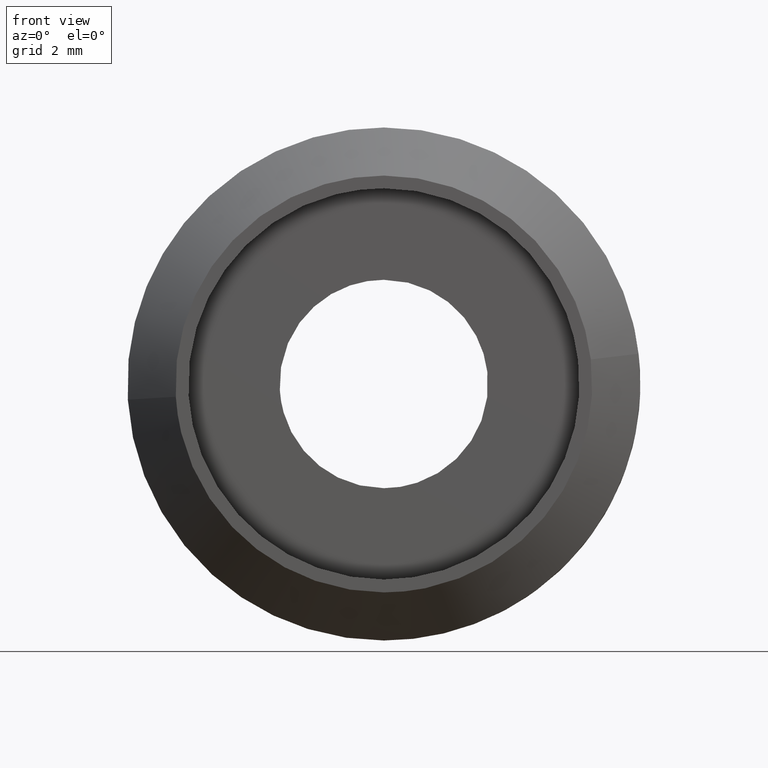
[diagram: clean part render]
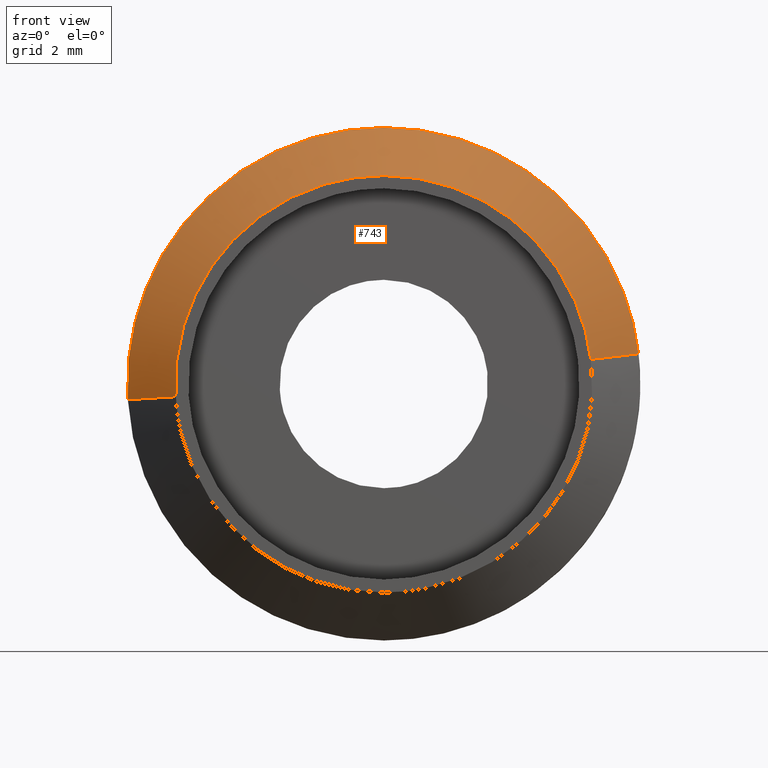
[diagram: same view with one face highlighted and labeled with its STEP entity id]
A machine part, front view. The second image highlights one B-rep face of the part: STEP entity #743.
In plain terms, the highlighted face is a freeform B-spline surface patch.
Its self-contained STEP definition (entity closure, byte-faithful):
#79=CARTESIAN_POINT('',(-7.985078387375068,4.337364E-013,-0.488388316280749));
#80=VERTEX_POINT('',#79);
#161=CARTESIAN_POINT('',(7.944076210909435,1.578459E-012,0.944273877266574));
#162=VERTEX_POINT('',#161);
#212=CARTESIAN_POINT('',(0.0,0.0,8.0));
#213=VERTEX_POINT('',#212);
#214=CARTESIAN_POINT('',(-7.985078387375068,4.337364E-013,-0.488388316280749));
#215=CARTESIAN_POINT('',(-7.999999999999999,0.0,-0.244422106392477));
#216=CARTESIAN_POINT('',(-8.0,0.0,0.0));
#217=CARTESIAN_POINT('',(-8.0,0.0,8.0));
#218=CARTESIAN_POINT('',(0.0,0.0,8.0));
#226=(BOUNDED_CURVE()B_SPLINE_CURVE(2,(#214,#215,#216,#217,#218),.UNSPECIFIED.,.F.,.U.)B_SPLINE_CURVE_WITH_KNOTS((3,2,3),(0.739332962241806,0.750000000000000,1.0),.UNSPECIFIED.)CURVE()GEOMETRIC_REPRESENTATION_ITEM()RATIONAL_B_SPLINE_CURVE((0.976072041672854,0.987502787903192,1.0,0.707106781186548,1.0))REPRESENTATION_ITEM(''));
#227=EDGE_CURVE('',#80,#213,#226,.T.);
#229=CARTESIAN_POINT('',(0.0,0.0,8.0));
#230=CARTESIAN_POINT('',(7.105396207588751,0.0,8.0));
#231=CARTESIAN_POINT('',(7.944076210909435,1.578459E-012,0.944273877266574));
#239=(BOUNDED_CURVE()B_SPLINE_CURVE(2,(#229,#230,#231),.UNSPECIFIED.,.F.,.U.)B_SPLINE_CURVE_WITH_KNOTS((3,3),(0.0,0.229562473515120),.UNSPECIFIED.)CURVE()GEOMETRIC_REPRESENTATION_ITEM()RATIONAL_B_SPLINE_CURVE((1.0,0.731050832853514,0.956026754186859))REPRESENTATION_ITEM(''));
#240=EDGE_CURVE('',#213,#162,#239,.T.);
#639=CARTESIAN_POINT('',(6.454561921363924,-1.499999999998524,0.767222525280608));
#640=VERTEX_POINT('',#639);
#658=CARTESIAN_POINT('',(-6.487874580296803,-1.500001690434756,-0.396814131159551));
#659=VERTEX_POINT('',#658);
#673=CARTESIAN_POINT('',(-6.487874580296803,-1.500001690434756,-0.396814131159551));
#674=CARTESIAN_POINT('',(-7.985078387375068,4.337364E-013,-0.488388316280749));
#675=QUASI_UNIFORM_CURVE('',1,(#673,#674),.UNSPECIFIED.,.F.,.U.);
#676=EDGE_CURVE('',#659,#80,#675,.T.);
#681=CARTESIAN_POINT('',(6.454561921363924,-1.499999999998524,0.767222525280608));
#682=CARTESIAN_POINT('',(7.944076210909435,1.578459E-012,0.944273877266574));
#683=QUASI_UNIFORM_CURVE('',1,(#681,#682),.UNSPECIFIED.,.F.,.U.);
#684=EDGE_CURVE('',#640,#162,#683,.T.);
#689=CARTESIAN_POINT('',(-6.450446134801303,-1.537500000000000,-0.394526186744013));
#690=CARTESIAN_POINT('',(-6.844972321545316,-1.537500000000000,6.055919948057291));
#691=CARTESIAN_POINT('',(-0.394526186744013,-1.537500000000000,6.450446134801303));
#692=CARTESIAN_POINT('',(5.696974809550266,-1.537500000000000,6.823018296383949));
#693=CARTESIAN_POINT('',(6.417324064125184,-1.537500000000001,0.762796241469300));
#694=CARTESIAN_POINT('',(-8.023444193689276,0.038437500000000,-0.490734869517227));
#695=CARTESIAN_POINT('',(-8.514179063206504,0.038437500000000,7.532709324172050));
#696=CARTESIAN_POINT('',(-0.490734869517227,0.038437500000000,8.023444193689276));
#697=CARTESIAN_POINT('',(7.086232254645152,0.038437500000000,8.486871355797128));
#698=CARTESIAN_POINT('',(7.982245014578937,0.038437500000000,0.948810818148687));
#706=(BOUNDED_SURFACE()B_SPLINE_SURFACE(2,1,((#689,#694),(#690,#695),(#691,#696),(#692,#697),(#693,#698)),.UNSPECIFIED.,.F.,.F.,.U.)B_SPLINE_SURFACE_WITH_KNOTS((3,2,3),(2,2),(0.0,13.318519331153910,26.104297889061652),(0.0,2.228712185952358),.UNSPECIFIED.)GEOMETRIC_REPRESENTATION_ITEM()RATIONAL_B_SPLINE_SURFACE(((1.0,1.0),(0.707106781186548,0.707106781186548),(1.0,1.0),(0.718822509939086,0.718822509939086),(0.977505800795127,0.977505800795127)))REPRESENTATION_ITEM('')SURFACE());
#707=CARTESIAN_POINT('',(0.0,-1.500000000000000,6.500000000000000));
#708=VERTEX_POINT('',#707);
#709=CARTESIAN_POINT('',(0.0,-1.500000000000000,6.500000000000000));
#710=CARTESIAN_POINT('',(5.773134418663169,-1.500000000000000,6.500000000000001));
#711=CARTESIAN_POINT('',(6.454561921363924,-1.499999999998525,0.767222525280608));
#719=(BOUNDED_CURVE()B_SPLINE_CURVE(2,(#709,#710,#711),.UNSPECIFIED.,.F.,.U.)B_SPLINE_CURVE_WITH_KNOTS((3,3),(0.0,0.229562473515042),.UNSPECIFIED.)CURVE()GEOMETRIC_REPRESENTATION_ITEM()RATIONAL_B_SPLINE_CURVE((1.0,0.731050832853606,0.956026754186705))REPRESENTATION_ITEM(''));
#720=EDGE_CURVE('',#708,#640,#719,.T.);
#721=ORIENTED_EDGE('',*,*,#720,.T.);
#722=ORIENTED_EDGE('',*,*,#684,.T.);
#723=ORIENTED_EDGE('',*,*,#240,.F.);
#724=ORIENTED_EDGE('',*,*,#227,.F.);
#725=ORIENTED_EDGE('',*,*,#676,.F.);
#726=CARTESIAN_POINT('',(-6.487874580296803,-1.500001690434756,-0.396814131159551));
#727=CARTESIAN_POINT('',(-6.499998336965248,-1.500001666142294,-0.198592221632066));
#728=CARTESIAN_POINT('',(-6.499998362740728,-1.500001640318650,0.000000100138742));
#729=CARTESIAN_POINT('',(-6.499999206381681,-1.500000795101272,6.500000048539619));
#730=CARTESIAN_POINT('',(0.0,-1.500000000000000,6.500000000000000));
#738=(BOUNDED_CURVE()B_SPLINE_CURVE(2,(#726,#727,#728,#729,#730),.UNSPECIFIED.,.F.,.U.)B_SPLINE_CURVE_WITH_KNOTS((3,2,3),(0.739332996087604,0.750000000000000,1.0),.UNSPECIFIED.)CURVE()GEOMETRIC_REPRESENTATION_ITEM()RATIONAL_B_SPLINE_CURVE((0.976072114210851,0.987502827556010,1.0,0.707106781186547,1.0))REPRESENTATION_ITEM(''));
#739=EDGE_CURVE('',#659,#708,#738,.T.);
#740=ORIENTED_EDGE('',*,*,#739,.T.);
#741=EDGE_LOOP('',(#721,#722,#723,#724,#725,#740));
#742=FACE_OUTER_BOUND('',#741,.T.);
#743=ADVANCED_FACE('',(#742),#706,.T.);